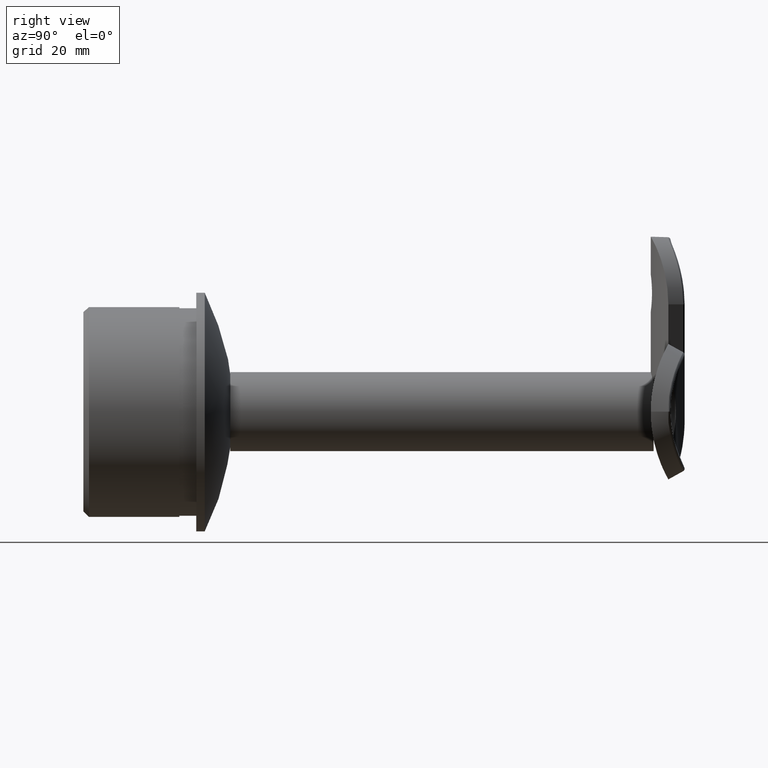
[diagram: clean part render]
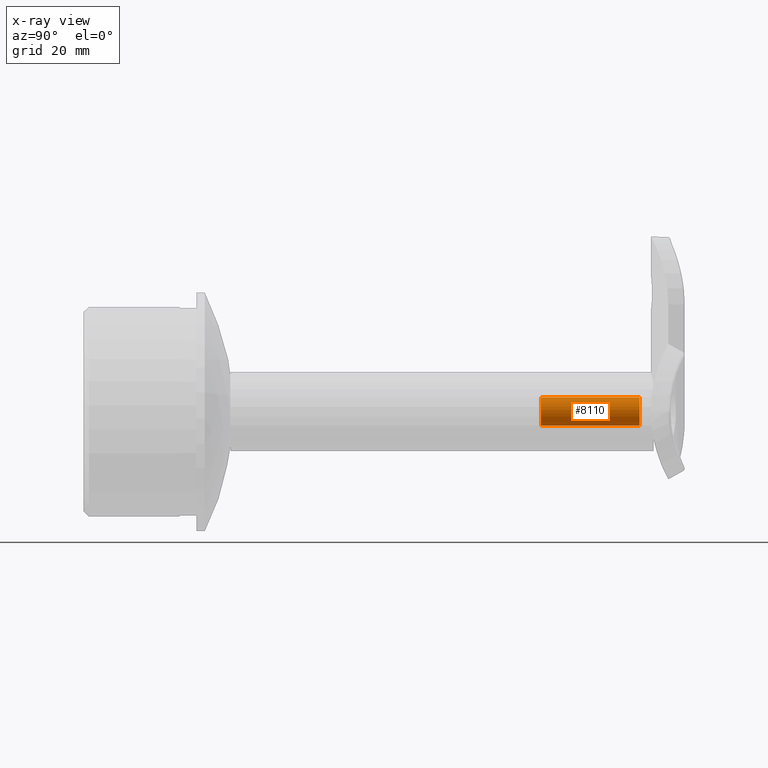
[diagram: x-ray — body ghosted, one internal face saturated and labeled with its STEP entity id]
A machine part, right view, then the same camera in x-ray: the body is ghosted and one INTERNAL B-rep face — a face not visible from any outside direction — is saturated and labeled: STEP entity #8110.
In plain terms, the highlighted cylindrical surface (bore or boss wall) has radius 2.5 mm, axis along (0, 1, 0).
Its self-contained STEP definition (entity closure, byte-faithful):
#276 = AXIS2_PLACEMENT_3D ( 'NONE', #14144, #6285, #15798 ) ;
#670 = AXIS2_PLACEMENT_3D ( 'NONE', #4468, #18770, #17083 ) ;
#2257 = CIRCLE ( 'NONE', #670, 2.499999999999997335 ) ;
#2963 = EDGE_LOOP ( 'NONE', ( #19109 ) ) ;
#4468 = CARTESIAN_POINT ( 'NONE',  ( 0.000000000000000000, 72.50000000000000000, 0.000000000000000000 ) ) ;
#6035 = EDGE_LOOP ( 'NONE', ( #7696 ) ) ;
#6285 = DIRECTION ( 'NONE',  ( -0.000000000000000000, 1.000000000000000000, -0.000000000000000000 ) ) ;
#6911 = CARTESIAN_POINT ( 'NONE',  ( 0.000000000000000000, 75.00000000000000000, 0.000000000000000000 ) ) ;
#7206 = CARTESIAN_POINT ( 'NONE',  ( 0.000000000000000000, 72.50000000000000000, 2.499999999999997335 ) ) ;
#7696 = ORIENTED_EDGE ( 'NONE', *, *, #19417, .F. ) ;
#8110 = ADVANCED_FACE ( 'NONE', ( #17206, #14508 ), #9321, .F. ) ;
#9321 = CYLINDRICAL_SURFACE ( 'NONE', #19421, 2.499999999999992895 ) ;
#13049 = VERTEX_POINT ( 'NONE', #14855 ) ;
#13262 = DIRECTION ( 'NONE',  ( 0.000000000000000000, 0.000000000000000000, 1.000000000000000000 ) ) ;
#14144 = CARTESIAN_POINT ( 'NONE',  ( 0.000000000000000000, 54.99999999999999289, 0.000000000000000000 ) ) ;
#14508 = FACE_OUTER_BOUND ( 'NONE', #6035, .T. ) ;
#14855 = CARTESIAN_POINT ( 'NONE',  ( 0.000000000000000000, 54.99999999999999289, 2.499999999999994671 ) ) ;
#15798 = DIRECTION ( 'NONE',  ( 0.000000000000000000, 0.000000000000000000, 1.000000000000000000 ) ) ;
#17083 = DIRECTION ( 'NONE',  ( 0.000000000000000000, 0.000000000000000000, 1.000000000000000000 ) ) ;
#17206 = FACE_OUTER_BOUND ( 'NONE', #2963, .T. ) ;
#17698 = EDGE_CURVE ( 'NONE', #19744, #19744, #2257, .T. ) ;
#17919 = DIRECTION ( 'NONE',  ( -0.000000000000000000, 1.000000000000000000, -0.000000000000000000 ) ) ;
#18770 = DIRECTION ( 'NONE',  ( -0.000000000000000000, 1.000000000000000000, -0.000000000000000000 ) ) ;
#19109 = ORIENTED_EDGE ( 'NONE', *, *, #17698, .T. ) ;
#19417 = EDGE_CURVE ( 'NONE', #13049, #13049, #20019, .T. ) ;
#19421 = AXIS2_PLACEMENT_3D ( 'NONE', #6911, #17919, #13262 ) ;
#19744 = VERTEX_POINT ( 'NONE', #7206 ) ;
#20019 = CIRCLE ( 'NONE', #276, 2.499999999999994671 ) ;